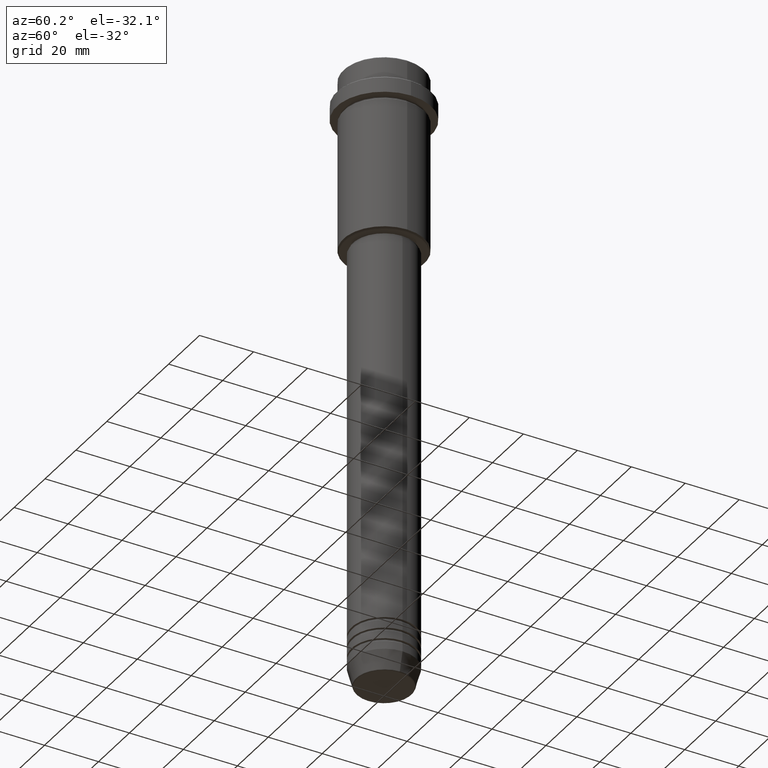
[diagram: clean part render]
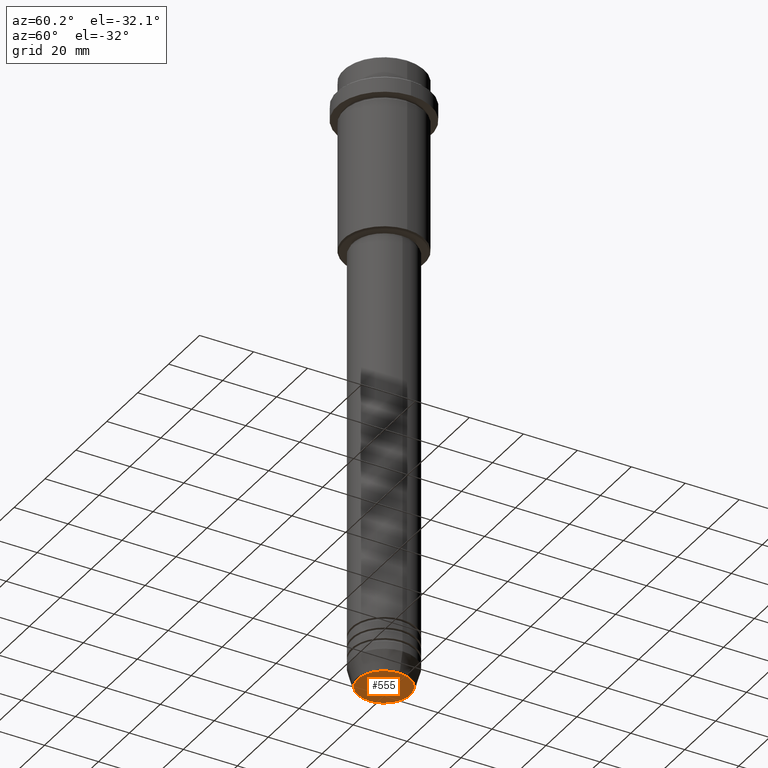
[diagram: same view with one face highlighted and labeled with its STEP entity id]
A machine part, auxiliary view. The second image highlights one B-rep face of the part: STEP entity #555.
In plain terms, the highlighted planar face has unit normal (0, -0, 1).
Its self-contained STEP definition (entity closure, byte-faithful):
#143 = DIRECTION ( 'NONE',  ( 0.000000000000000000, -0.000000000000000000, 1.000000000000000000 ) ) ;
#168 = VERTEX_POINT ( 'NONE', #1407 ) ;
#288 = CARTESIAN_POINT ( 'NONE',  ( 9.740692158992658278, 0.000000000000000000, -230.0000000000000000 ) ) ;
#301 = AXIS2_PLACEMENT_3D ( 'NONE', #606, #381, #705 ) ;
#381 = DIRECTION ( 'NONE',  ( 0.000000000000000000, 0.000000000000000000, -1.000000000000000000 ) ) ;
#384 = VERTEX_POINT ( 'NONE', #288 ) ;
#393 = CIRCLE ( 'NONE', #1198, 9.740692158992658278 ) ;
#401 = CARTESIAN_POINT ( 'NONE',  ( 0.000000000000000000, 0.000000000000000000, -230.0000000000000000 ) ) ;
#439 = AXIS2_PLACEMENT_3D ( 'NONE', #401, #143, #835 ) ;
#555 = ADVANCED_FACE ( 'NONE', ( #706 ), #1366, .F. ) ;
#579 = ORIENTED_EDGE ( 'NONE', *, *, #1373, .T. ) ;
#606 = CARTESIAN_POINT ( 'NONE',  ( 0.000000000000000000, 0.000000000000000000, -230.0000000000000000 ) ) ;
#646 = CIRCLE ( 'NONE', #301, 9.740692158992658278 ) ;
#677 = EDGE_LOOP ( 'NONE', ( #1137, #579 ) ) ;
#705 = DIRECTION ( 'NONE',  ( 1.000000000000000000, 0.000000000000000000, 0.000000000000000000 ) ) ;
#706 = FACE_OUTER_BOUND ( 'NONE', #677, .T. ) ;
#725 = DIRECTION ( 'NONE',  ( 0.000000000000000000, 0.000000000000000000, -1.000000000000000000 ) ) ;
#835 = DIRECTION ( 'NONE',  ( 1.000000000000000000, 0.000000000000000000, 0.000000000000000000 ) ) ;
#836 = DIRECTION ( 'NONE',  ( 1.000000000000000000, 0.000000000000000000, 0.000000000000000000 ) ) ;
#906 = EDGE_CURVE ( 'NONE', #384, #168, #393, .T. ) ;
#1137 = ORIENTED_EDGE ( 'NONE', *, *, #906, .T. ) ;
#1198 = AXIS2_PLACEMENT_3D ( 'NONE', #1240, #725, #836 ) ;
#1240 = CARTESIAN_POINT ( 'NONE',  ( 0.000000000000000000, 0.000000000000000000, -230.0000000000000000 ) ) ;
#1366 = PLANE ( 'NONE',  #439 ) ;
#1373 = EDGE_CURVE ( 'NONE', #168, #384, #646, .T. ) ;
#1407 = CARTESIAN_POINT ( 'NONE',  ( -9.740692158992658278, 1.222463696683474801E-15, -230.0000000000000000 ) ) ;